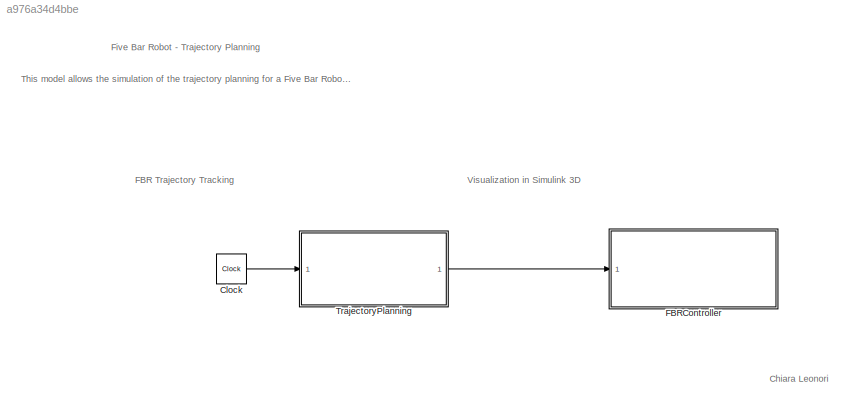
MODEL slx_a976a34d4bbe
KIND model
CONFIG AbsTol = auto
CONFIG EnableMultiTasking = off
CONFIG FixedStep = 0.01
CONFIG InitFcn = if TP_MODE == 1\n    %pass\n    return;\nend\njointWaypoints = zeros(4, size(waypoints, 2));\nfor i=1:size(waypoints, 2)\n    config = FBR.searchConfiguration( ...\n        FBR.solveIK(bodyLengths.La, bodyLengths.Lb, bodyLengths.Lc, waypoints(1, i), waypoints(2, i)) ...\n    );\n    jointWaypoints(:, i) = [config.th1; config.th2; config.th3; config.th4];\nend
CONFIG MaxStep = auto
CONFIG MinStep = auto
CONFIG PreLoadFcn = TP_TASK_SPACE = Simulink.Variant('TP_MODE==1');\nTP_JOINT_SPACE = Simulink.Variant('TP_MODE==2');\n
CONFIG RelTol = 1e-3
CONFIG SampleTimeConstraint = Unconstrained
CONFIG SolverName = VariableStepAuto
CONFIG StartTime = 0.0
CONFIG StopTime = 2
BLOCK [Clock] Clock
BLOCK [SubSystem] FBRController
  Ports = [1]
  ReferencedSubsystem = FBRController
  RequestExecContextInheritance = off
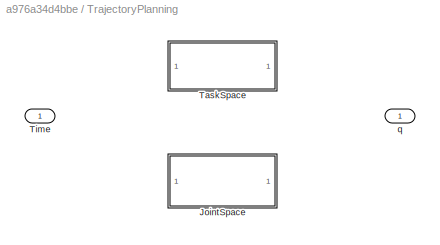
BLOCK [SubSystem] TrajectoryPlanning
  Ports = [1, 1]
  RequestExecContextInheritance = off
  Variant = on
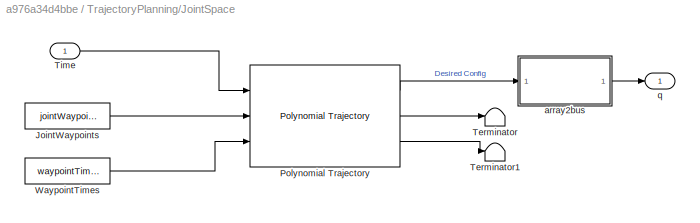
BLOCK [SubSystem] TrajectoryPlanning/JointSpace
  Ports = [1, 1]
  RequestExecContextInheritance = off
  VariantControl = TP_MODE == 2
BLOCK [Constant] TrajectoryPlanning/JointSpace/JointWaypoints
  Value = jointWaypoints
BLOCK [Reference] TrajectoryPlanning/JointSpace/Polynomial Trajectory  REF=robotcorelib/Polynomial Trajectory
  Ports = [3, 3]
  SourceBlock = robotcorelib/Polynomial Trajectory
  SourceProductBaseCode = NV,RO,RR,UV
  SourceType = robotics.slcore.internal.block.PolyTrajSys
BLOCK [Terminator] TrajectoryPlanning/JointSpace/Terminator
BLOCK [Terminator] TrajectoryPlanning/JointSpace/Terminator1
BLOCK [Inport] TrajectoryPlanning/JointSpace/Time
BLOCK [Constant] TrajectoryPlanning/JointSpace/WaypointTimes
  Value = waypointTimes
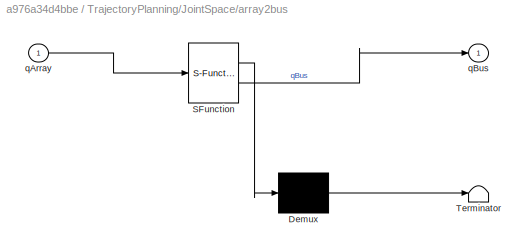
BLOCK [SubSystem] TrajectoryPlanning/JointSpace/array2bus
  ErrorFcn = Stateflow.Translate.translate
  PermitHierarchicalResolution = ExplicitOnly
  Ports = [1, 1]
  RequestExecContextInheritance = off
  SFBlockType = MATLAB Function
  TreatAsAtomicUnit = on
BLOCK [Demux] TrajectoryPlanning/JointSpace/array2bus/ Demux 
  Outputs = 1
  Ports = [1, 1]
BLOCK [S-Function] TrajectoryPlanning/JointSpace/array2bus/ SFunction 
  EnableBusSupport = on
  FunctionName = sf_sfun
  PortCounts = [1 2]
  Ports = [1, 2]
  SFcnIsStateOwnerBlock = off
  SFunctionDeploymentMode = off
  Tag = Stateflow S-Function 3
BLOCK [Terminator] TrajectoryPlanning/JointSpace/array2bus/ Terminator 
BLOCK [Inport] TrajectoryPlanning/JointSpace/array2bus/qArray
BLOCK [Outport] TrajectoryPlanning/JointSpace/array2bus/qBus
BLOCK [Outport] TrajectoryPlanning/JointSpace/q
  OutDataTypeStr = Bus: Bus_q
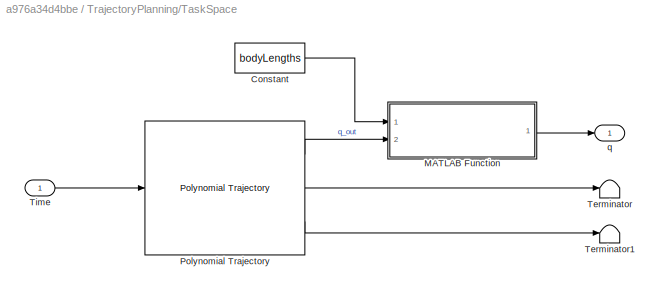
BLOCK [SubSystem] TrajectoryPlanning/TaskSpace
  Ports = [1, 1]
  RequestExecContextInheritance = off
  VariantControl = TP_MODE == 1
BLOCK [Constant] TrajectoryPlanning/TaskSpace/Constant
  OutDataTypeStr = Bus: Bus_BodyLengths
  Value = bodyLengths
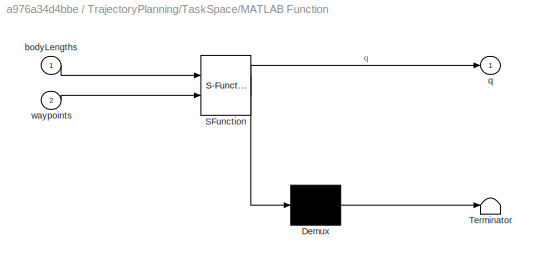
BLOCK [SubSystem] TrajectoryPlanning/TaskSpace/MATLAB Function
  ErrorFcn = Stateflow.Translate.translate
  PermitHierarchicalResolution = ExplicitOnly
  Ports = [2, 1]
  RequestExecContextInheritance = off
  SFBlockType = MATLAB Function
  TreatAsAtomicUnit = on
BLOCK [Demux] TrajectoryPlanning/TaskSpace/MATLAB Function/ Demux 
  Outputs = 1
  Ports = [1, 1]
BLOCK [S-Function] TrajectoryPlanning/TaskSpace/MATLAB Function/ SFunction 
  EnableBusSupport = on
  FunctionName = sf_sfun
  PortCounts = [2 2]
  Ports = [2, 2]
  SFcnIsStateOwnerBlock = off
  SFunctionDeploymentMode = off
  Tag = Stateflow S-Function 2
BLOCK [Terminator] TrajectoryPlanning/TaskSpace/MATLAB Function/ Terminator 
BLOCK [Inport] TrajectoryPlanning/TaskSpace/MATLAB Function/bodyLengths
BLOCK [Outport] TrajectoryPlanning/TaskSpace/MATLAB Function/q
BLOCK [Inport] TrajectoryPlanning/TaskSpace/MATLAB Function/waypoints
  Port = 2
BLOCK [Reference] TrajectoryPlanning/TaskSpace/Polynomial Trajectory  REF=robotcorelib/Polynomial Trajectory
  Ports = [1, 3]
  SourceBlock = robotcorelib/Polynomial Trajectory
  SourceProductBaseCode = NV,RO,RR,UV
  SourceType = robotics.slcore.internal.block.PolyTrajSys
BLOCK [Terminator] TrajectoryPlanning/TaskSpace/Terminator
BLOCK [Terminator] TrajectoryPlanning/TaskSpace/Terminator1
BLOCK [Inport] TrajectoryPlanning/TaskSpace/Time
BLOCK [Outport] TrajectoryPlanning/TaskSpace/q
  OutDataTypeStr = Bus: Bus_q
BLOCK [Inport] TrajectoryPlanning/Time
BLOCK [Outport] TrajectoryPlanning/q
  OutDataTypeStr = Bus: Bus_q
ANNOTATION (root): Chiara Leonori
ANNOTATION (root): This model allows the simulation of the trajectory planning for a Five Bar Robot. Either the task space or the joint space can be used, through two Variant Subsystems ("TP_MODE"=1 -> task space; "TP_MODE"=2 -> joint space).The model uses the polynomial trajectory block to create continuous trajectories in the configuration space.The FBRController Model simulates and displays the behaviour of the F...<+54ch>
ANNOTATION (root): Five Bar Robot - Trajectory Planning
ANNOTATION (root): FBR Trajectory Tracking
ANNOTATION (root): Visualization in Simulink 3D
LINE Clock:1 -> TrajectoryPlanning:1
LINE TrajectoryPlanning/JointSpace/JointWaypoints:1 -> TrajectoryPlanning/JointSpace/Polynomial Trajectory:2
LINE TrajectoryPlanning/JointSpace/Polynomial Trajectory:1 -> TrajectoryPlanning/JointSpace/array2bus:1
LINE TrajectoryPlanning/JointSpace/Polynomial Trajectory:2 -> TrajectoryPlanning/JointSpace/Terminator:1
LINE TrajectoryPlanning/JointSpace/Polynomial Trajectory:3 -> TrajectoryPlanning/JointSpace/Terminator1:1
LINE TrajectoryPlanning/JointSpace/Time:1 -> TrajectoryPlanning/JointSpace/Polynomial Trajectory:1
LINE TrajectoryPlanning/JointSpace/WaypointTimes:1 -> TrajectoryPlanning/JointSpace/Polynomial Trajectory:3
LINE TrajectoryPlanning/JointSpace/array2bus:1 -> TrajectoryPlanning/JointSpace/q:1
LINE TrajectoryPlanning/TaskSpace/Constant:1 -> TrajectoryPlanning/TaskSpace/MATLAB Function:1
LINE TrajectoryPlanning/TaskSpace/MATLAB Function:1 -> TrajectoryPlanning/TaskSpace/q:1
LINE TrajectoryPlanning/TaskSpace/Polynomial Trajectory:1 -> TrajectoryPlanning/TaskSpace/MATLAB Function:2
LINE TrajectoryPlanning/TaskSpace/Polynomial Trajectory:2 -> TrajectoryPlanning/TaskSpace/Terminator:1
LINE TrajectoryPlanning/TaskSpace/Polynomial Trajectory:3 -> TrajectoryPlanning/TaskSpace/Terminator1:1
LINE TrajectoryPlanning/TaskSpace/Time:1 -> TrajectoryPlanning/TaskSpace/Polynomial Trajectory:1
LINE TrajectoryPlanning:1 -> FBRController:1
CHART TrajectoryPlanning/JointSpace/array2bus states=1 transitions=1
  STATE_LABEL 'eML_blk_kernel()'
  STATE_LABEL 'SCRIPT:\nfunction qBus = adapter(qArray)\n    qBus.th1 = qArray(1);\n    qBus.th2 = qArray(2);\n    qBus.th3 = qArray(3);\n    qBus.th4 = qArray(4);\n'
CHART TrajectoryPlanning/TaskSpace/MATLAB Function states=1 transitions=1
  STATE_LABEL 'eML_blk_kernel()'
  STATE_LABEL 'SCRIPT:\nfunction q = IKSolver(bodyLengths, waypoints)\n\nsolution = FBR.solveIK(bodyLengths.La, bodyLengths.Lb, bodyLengths.Lc, waypoints(1), waypoints(2));\nqComplete = FBR.searchConfiguration(solution);\nq.th1 = qComplete.th1;\nq.th2 = qComplete.th2;\nq.th3 = qComplete.th3;\nq.th4 = qComplete.th4;'
CHART  states=0 transitions=0
CHART  states=0 transitions=0
